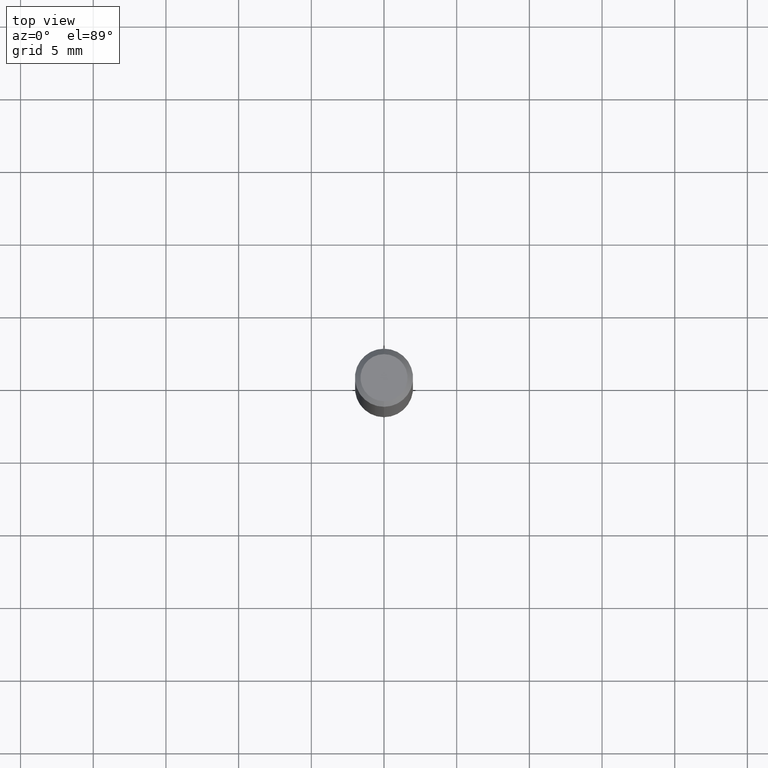
[diagram: clean part render]
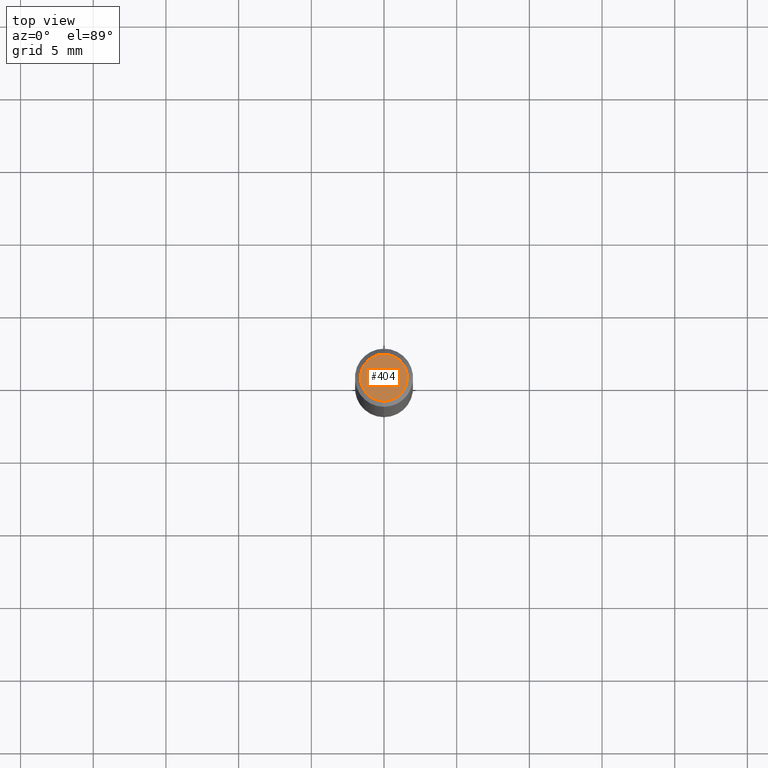
[diagram: same view with one face highlighted and labeled with its STEP entity id]
A machine part, top view. The second image highlights one B-rep face of the part: STEP entity #404.
In plain terms, the highlighted planar face has unit normal (0, -0, -1).
Its self-contained STEP definition (entity closure, byte-faithful):
#28 = CARTESIAN_POINT ( 'NONE',  ( 4.451638707024994831E-16, 0.06375000000000000111, -2.493046491753331708E-16 ) ) ;
#42 = AXIS2_PLACEMENT_3D ( 'NONE', #238, #358, #192 ) ;
#64 = EDGE_CURVE ( 'NONE', #217, #78, #320, .T. ) ;
#78 = VERTEX_POINT ( 'NONE', #431 ) ;
#85 = EDGE_LOOP ( 'NONE', ( #411, #132 ) ) ;
#132 = ORIENTED_EDGE ( 'NONE', *, *, #64, .T. ) ;
#139 = PLANE ( 'NONE',  #154 ) ;
#154 = AXIS2_PLACEMENT_3D ( 'NONE', #28, #449, #453 ) ;
#165 = CARTESIAN_POINT ( 'NONE',  ( -4.888104823412213911E-16, -0.06375000000000000111, 1.691420317032095164E-16 ) ) ;
#192 = DIRECTION ( 'NONE',  ( -6.982962677686265922E-15, -1.000000000000000000, 3.491510222503926328E-15 ) ) ;
#193 = DIRECTION ( 'NONE',  ( -6.982962677686265922E-15, -1.000000000000000000, 3.491510222503926328E-15 ) ) ;
#217 = VERTEX_POINT ( 'NONE', #165 ) ;
#230 = CARTESIAN_POINT ( 'NONE',  ( 1.306890424147594012E-45, -1.865923989110610669E-31, -5.344174498141577372E-17 ) ) ;
#235 = AXIS2_PLACEMENT_3D ( 'NONE', #230, #482, #193 ) ;
#238 = CARTESIAN_POINT ( 'NONE',  ( 1.306890424147594012E-45, -1.865923989110610669E-31, -5.344174498141577372E-17 ) ) ;
#320 = CIRCLE ( 'NONE', #235, 0.06375000000000000111 ) ;
#358 = DIRECTION ( 'NONE',  ( -2.445448636832614315E-29, 3.491510222503925933E-15, 1.000000000000000000 ) ) ;
#361 = CIRCLE ( 'NONE', #42, 0.06375000000000000111 ) ;
#404 = ADVANCED_FACE ( 'NONE', ( #501 ), #139, .F. ) ;
#411 = ORIENTED_EDGE ( 'NONE', *, *, #506, .T. ) ;
#431 = CARTESIAN_POINT ( 'NONE',  ( 4.975360907851465623E-16, 0.06375000000000000111, -2.760255216660410884E-16 ) ) ;
#449 = DIRECTION ( 'NONE',  ( 2.445448636832614035E-29, -3.491510222503925539E-15, -1.000000000000000000 ) ) ;
#453 = DIRECTION ( 'NONE',  ( 6.982962677686265922E-15, 1.000000000000000000, -3.491510222503925539E-15 ) ) ;
#482 = DIRECTION ( 'NONE',  ( -2.445448636832614315E-29, 3.491510222503925933E-15, 1.000000000000000000 ) ) ;
#501 = FACE_OUTER_BOUND ( 'NONE', #85, .T. ) ;
#506 = EDGE_CURVE ( 'NONE', #78, #217, #361, .T. ) ;